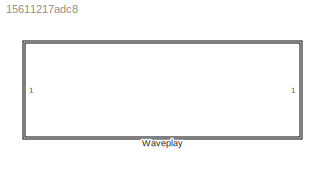
MODEL slx_15611217adc8
KIND library
CONFIG AbsTol = auto
CONFIG EnableMultiTasking = off
CONFIG FixedStep = auto
CONFIG MaxStep = auto
CONFIG MinStep = auto
CONFIG RelTol = 1e-3
CONFIG SampleTimeConstraint = Unconstrained
CONFIG SolverName = VariableStepAuto
CONFIG StartTime = 0.0
CONFIG StopTime = 10.0
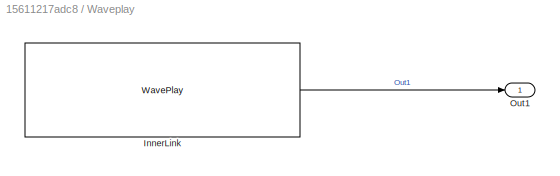
BLOCK [SubSystem] Waveplay
BLOCK [Reference] Waveplay/InnerLink  REF=WavePlayLibBtc/WavePlay
  SourceBlock = WavePlayLibBtc/WavePlay
  SourceProductName = Bose Blocklib
  SourceType = Chimes WavePlay
BLOCK [Outport] Waveplay/Out1
LINE Waveplay/InnerLink:1 -> Waveplay/Out1:1
